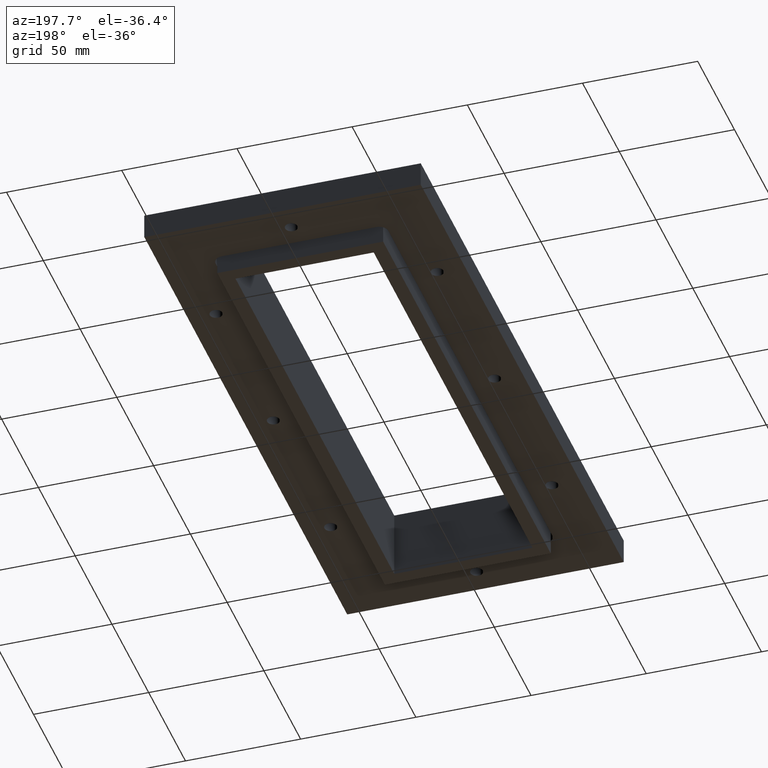
[diagram: clean part render]
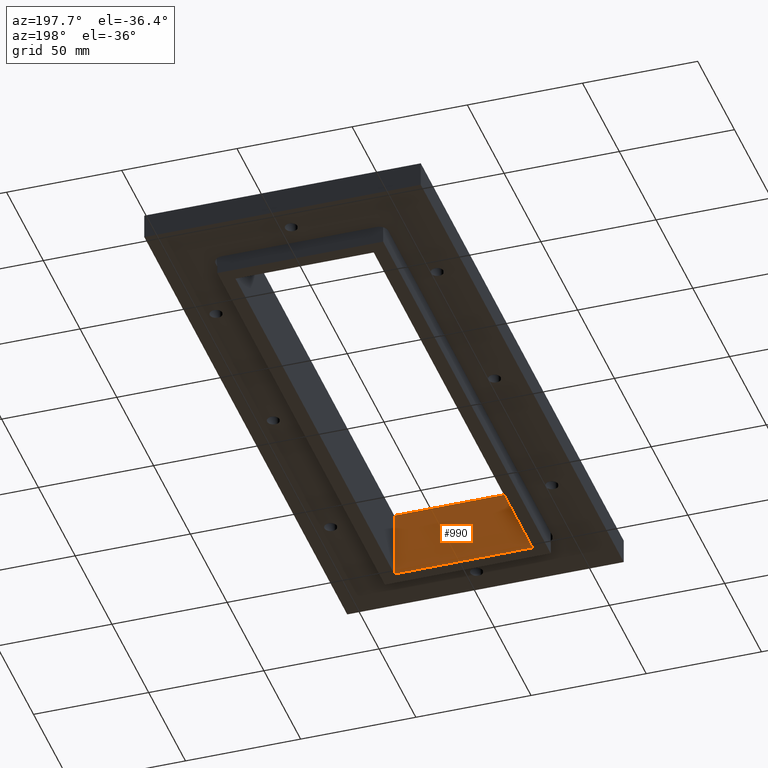
[diagram: same view with one face highlighted and labeled with its STEP entity id]
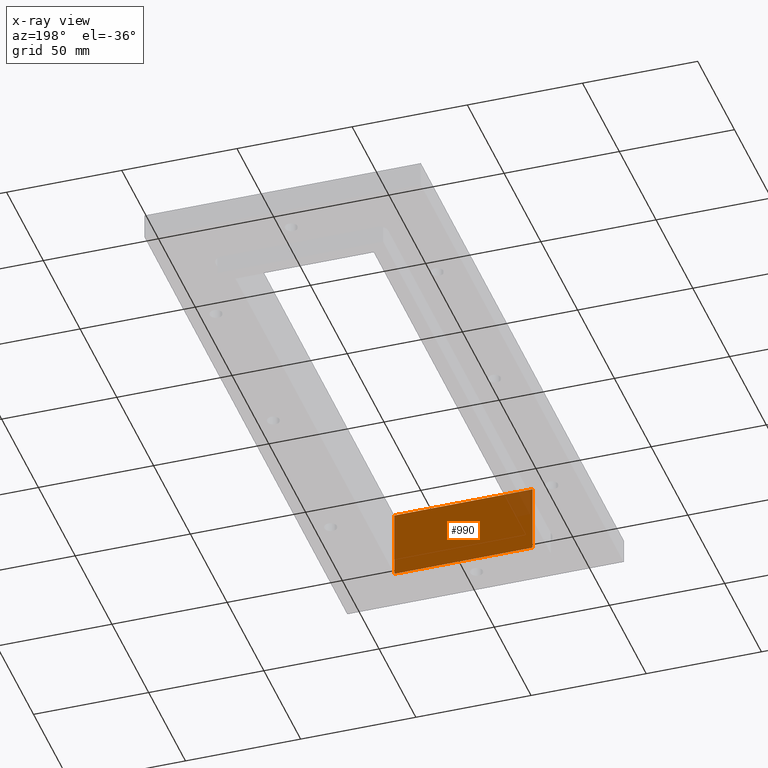
[diagram: x-ray of the same camera — body ghosted, the highlighted face saturated]
A machine part, auxiliary view. The second image highlights one B-rep face of the part: STEP entity #990.
The next image is the same camera in x-ray: the body ghosted, the highlighted face saturated — about 6% of this face is hidden behind the body in this view.
In plain terms, the highlighted planar face has unit normal (0, 1, -0).
Its self-contained STEP definition (entity closure, byte-faithful):
#86=PLANE('',#1077);
#124=FACE_OUTER_BOUND('',#175,.T.);
#175=EDGE_LOOP('',(#761,#762,#763,#764));
#269=LINE('',#1496,#361);
#284=LINE('',#1523,#376);
#285=LINE('',#1526,#377);
#286=LINE('',#1527,#378);
#361=VECTOR('',#1218,10.);
#376=VECTOR('',#1241,10.);
#377=VECTOR('',#1244,10.);
#378=VECTOR('',#1245,10.);
#501=VERTEX_POINT('',#1494);
#502=VERTEX_POINT('',#1495);
#510=VERTEX_POINT('',#1521);
#511=VERTEX_POINT('',#1525);
#597=EDGE_CURVE('',#501,#502,#269,.T.);
#612=EDGE_CURVE('',#510,#502,#284,.T.);
#613=EDGE_CURVE('',#511,#510,#285,.T.);
#614=EDGE_CURVE('',#511,#501,#286,.T.);
#761=ORIENTED_EDGE('',*,*,#613,.T.);
#762=ORIENTED_EDGE('',*,*,#612,.T.);
#763=ORIENTED_EDGE('',*,*,#597,.F.);
#764=ORIENTED_EDGE('',*,*,#614,.F.);
#990=ADVANCED_FACE('',(#124),#86,.T.);
#1077=AXIS2_PLACEMENT_3D('',#1524,#1242,#1243);
#1218=DIRECTION('',(-1.48029736616688E-16,1.48029736616688E-16,1.));
#1241=DIRECTION('',(1.,0.,0.));
#1242=DIRECTION('center_axis',(0.,1.,-1.48029736616688E-16));
#1243=DIRECTION('ref_axis',(1.48029736616688E-16,1.48029736616688E-16,1.));
#1244=DIRECTION('',(1.48029736616688E-16,1.48029736616688E-16,1.));
#1245=DIRECTION('',(1.,0.,0.));
#1494=CARTESIAN_POINT('',(29.9999999999999,-108.,-15.));
#1495=CARTESIAN_POINT('',(29.9999999999999,-108.,15.));
#1496=CARTESIAN_POINT('',(30.,-108.,-7.5));
#1521=CARTESIAN_POINT('',(-30.,-108.,15.));
#1523=CARTESIAN_POINT('',(-30.,-108.,15.));
#1524=CARTESIAN_POINT('Origin',(-30.,-108.,-15.));
#1525=CARTESIAN_POINT('',(-30.,-108.,-15.));
#1526=CARTESIAN_POINT('',(-30.,-108.,-7.49999999999998));
#1527=CARTESIAN_POINT('',(-30.,-108.,-15.));